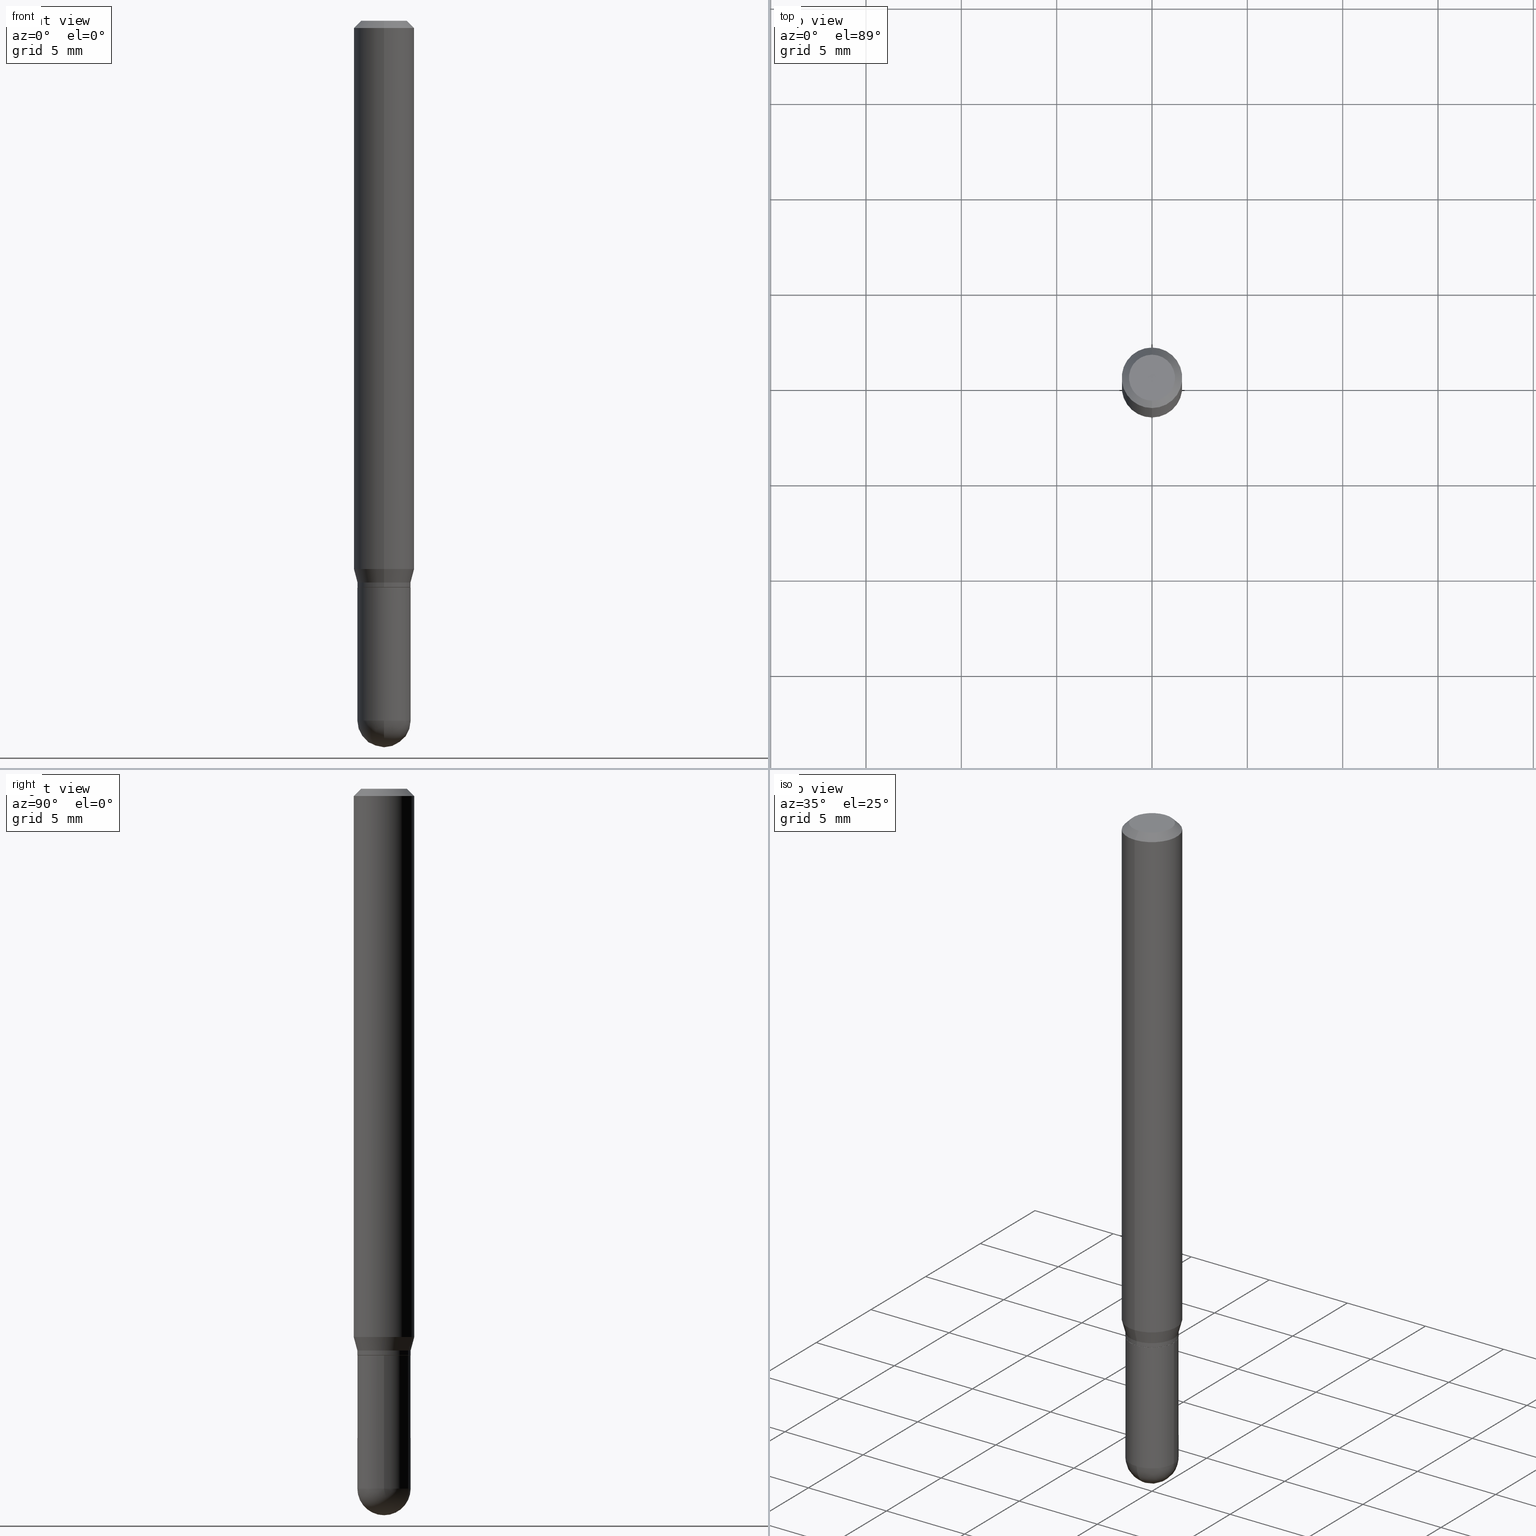
[diagram: canonical four-view strip — front | top / right | iso, engineering-drawing reading convention]
A machine part, canonical four-view strip (front | top / right | iso — engineering-drawing reading convention). The complete STEP part file that produces these views, byte-faithful:
ISO-10303-21;
HEADER;
FILE_DESCRIPTION (( 'STEP AP203' ),
    '1' );
FILE_NAME ('02603.STEP',
    '2024-03-07T20:42:38',
    ( '' ),
    ( '' ),
    'SwSTEP 2.0',
    'SolidWorks 2023',
    '' );
FILE_SCHEMA (( 'CONFIG_CONTROL_DESIGN' ));
ENDSEC;

DATA;
#1 = CARTESIAN_POINT ( 'NONE',  ( 2.836845830373735476E-29, -4.049972261486770294E-15, -1.160000000000000142 ) ) ;
#2 = DIRECTION ( 'NONE',  ( -6.982962677686266711E-15, -1.000000000000000000, 3.491355397833422354E-15 ) ) ;
#3 = ORIENTED_EDGE ( 'NONE', *, *, #148, .T. ) ;
#4 = VECTOR ( 'NONE', #181, 39.37007874015748143 ) ;
#5 = DIRECTION ( 'NONE',  ( -2.445556750322185455E-29, 3.491355397833421960E-15, 1.000000000000000000 ) ) ;
#6 = CYLINDRICAL_SURFACE ( 'NONE', #502, 0.05500000000000006273 ) ;
#7 = DIRECTION ( 'NONE',  ( -6.982962677686265922E-15, -1.000000000000000000, 4.966996352116824932E-15 ) ) ;
#8 = ADVANCED_FACE ( 'NONE', ( #408 ), #75, .T. ) ;
#9 = AXIS2_PLACEMENT_3D ( 'NONE', #88, #448, #483 ) ;
#10 = DIRECTION ( 'NONE',  ( -6.982962677686265922E-15, -1.000000000000000000, 2.483498176058418383E-15 ) ) ;
#11 = LOCAL_TIME ( 15, 42, 38.00000000000000000, #172 ) ;
#12 = DATE_TIME_ROLE ( 'creation_date' ) ;
#13 = CALENDAR_DATE ( 2024, 7, 3 ) ;
#14 = PERSON_AND_ORGANIZATION ( #35, #466 ) ;
#15 = CIRCLE ( 'NONE', #385, 0.05500000000000006967 ) ;
#16 = APPROVAL_PERSON_ORGANIZATION ( #121, #142, #213 ) ;
#17 = EDGE_LOOP ( 'NONE', ( #499, #155, #401, #472, #3 ) ) ;
#18 = ORIENTED_EDGE ( 'NONE', *, *, #57, .T. ) ;
#19 = DIRECTION ( 'NONE',  ( -2.445556750322185455E-29, 3.491355397833421565E-15, 1.000000000000000000 ) ) ;
#20 = ORIENTED_EDGE ( 'NONE', *, *, #507, .F. ) ;
#21 = CARTESIAN_POINT ( 'NONE',  ( 2.836845830373735476E-29, -4.049972261486770294E-15, -1.160000000000000142 ) ) ;
#22 = VECTOR ( 'NONE', #23, 39.37007874015748143 ) ;
#23 = DIRECTION ( 'NONE',  ( -2.445556750322185455E-29, 3.491355397833421565E-15, 1.000000000000000000 ) ) ;
#24 = ADVANCED_FACE ( 'NONE', ( #510 ), #177, .T. ) ;
#25 = DIRECTION ( 'NONE',  ( 1.000000000000000000, -6.982962677686262766E-15, 0.000000000000000000 ) ) ;
#26 = ADVANCED_FACE ( 'NONE', ( #112 ), #471, .F. ) ;
#27 = DIRECTION ( 'NONE',  ( -2.445468806185136597E-29, 3.491481338843145583E-15, 1.000000000000000000 ) ) ;
#28 = ORIENTED_EDGE ( 'NONE', *, *, #163, .F. ) ;
#29 = EDGE_CURVE ( 'NONE', #132, #384, #316, .T. ) ;
#30 = CARTESIAN_POINT ( 'NONE',  ( 3.668335125483358950E-31, -5.237033096750247867E-17, -0.01500000000000032904 ) ) ;
#31 =( NAMED_UNIT ( * ) PLANE_ANGLE_UNIT ( ) SI_UNIT ( $, .RADIAN. ) );
#32 = DIRECTION ( 'NONE',  ( 1.000000000000000000, -6.982962677686262766E-15, 0.000000000000000000 ) ) ;
#33 = CARTESIAN_POINT ( 'NONE',  ( -3.840629472727166842E-16, -0.05500000000000411504, -1.160000000000000142 ) ) ;
#34 = AXIS2_PLACEMENT_3D ( 'NONE', #30, #437, #358 ) ;
#35 = PERSON ( 'UNSPECIFIED', 'UNSPECIFIED', 'UNSPECIFIED', ('UNSPECIFIED'), ('UNSPECIFIED'), ('UNSPECIFIED') ) ;
#36 = VERTEX_POINT ( 'NONE', #33 ) ;
#37 = CIRCLE ( 'NONE', #337, 0.05500000000000006273 ) ;
#38 = DIRECTION ( 'NONE',  ( -2.445556750322185455E-29, 3.491355397833421565E-15, 1.000000000000000000 ) ) ;
#39 = DIRECTION ( 'NONE',  ( -4.937700262164631661E-15, -0.7071067811865571207, 0.7071067811865379138 ) ) ;
#40 = DIRECTION ( 'NONE',  ( 2.438088387897960049E-29, -3.491481338843145188E-15, -1.000000000000000000 ) ) ;
#41 = CARTESIAN_POINT ( 'NONE',  ( 3.872457909892832456E-16, 0.05449999999999592670, -1.170000000000000151 ) ) ;
#42 = EDGE_CURVE ( 'NONE', #124, #301, #361, .T. ) ;
#43 = AXIS2_PLACEMENT_3D ( 'NONE', #158, #40, #392 ) ;
#44 = CC_DESIGN_DATE_AND_TIME_ASSIGNMENT ( #183, #333, ( #484 ) ) ;
#45 = ORIENTED_EDGE ( 'NONE', *, *, #452, .T. ) ;
#46 = ORIENTED_EDGE ( 'NONE', *, *, #29, .T. ) ;
#47 = CARTESIAN_POINT ( 'NONE',  ( -4.364351673553912750E-16, -0.06250000000000005551, -0.01500000000000011047 ) ) ;
#48 = ADVANCED_FACE ( 'NONE', ( #79 ), #77, .T. ) ;
#49 = DATE_AND_TIME ( #404, #353 ) ;
#50 = CARTESIAN_POINT ( 'NONE',  ( 3.907985046680837497E-16, 0.05499999999999592715, -1.169500000000000206 ) ) ;
#51 = DIRECTION ( 'NONE',  ( 4.937700262164548042E-15, 0.7071067811865451302, -0.7071067811865499042 ) ) ;
#52 = VECTOR ( 'NONE', #202, 39.37007874015748143 ) ;
#53 = CC_DESIGN_APPROVAL ( #142, ( #481 ) ) ;
#54 = ORIENTED_EDGE ( 'NONE', *, *, #117, .F. ) ;
#55 = PERSON_AND_ORGANIZATION ( #35, #466 ) ;
#56 = ADVANCED_FACE ( 'NONE', ( #160 ), #375, .T. ) ;
#57 = EDGE_CURVE ( 'NONE', #60, #36, #15, .T. ) ;
#58 = PERSON_AND_ORGANIZATION ( #35, #466 ) ;
#59 = AXIS2_PLACEMENT_3D ( 'NONE', #154, #5, #439 ) ;
#60 = VERTEX_POINT ( 'NONE', #475 ) ;
#61 = APPLICATION_PROTOCOL_DEFINITION ( 'international standard', 'config_control_design', 1994, #365 ) ;
#62 = CARTESIAN_POINT ( 'NONE',  ( 0.000000000000000000, 0.000000000000000000, 0.000000000000000000 ) ) ;
#63 = EDGE_CURVE ( 'NONE', #36, #331, #314, .T. ) ;
#64 = DIRECTION ( 'NONE',  ( -2.445468806185136597E-29, 3.491481338843145583E-15, 1.000000000000000000 ) ) ;
#65 = EDGE_CURVE ( 'NONE', #132, #440, #66, .T. ) ;
#66 = CIRCLE ( 'NONE', #285, 0.05450000000000000677 ) ;
#67 = ORIENTED_EDGE ( 'NONE', *, *, #263, .F. ) ;
#68 = DIRECTION ( 'NONE',  ( -2.445556750322185455E-29, 3.491355397833421565E-15, 1.000000000000000000 ) ) ;
#69 =( CONVERSION_BASED_UNIT ( 'INCH', #428 ) LENGTH_UNIT ( ) NAMED_UNIT ( #495 ) );
#70 = EDGE_LOOP ( 'NONE', ( #470, #315, #279, #118 ) ) ;
#71 = EDGE_CURVE ( 'NONE', #440, #503, #237, .T. ) ;
#72 = DIRECTION ( 'NONE',  ( -2.445556750322185455E-29, 3.491355397833421960E-15, 1.000000000000000000 ) ) ;
#73 = DIRECTION ( 'NONE',  ( -2.445556750322185455E-29, 3.491355397833421960E-15, 1.000000000000000000 ) ) ;
#74 = LOCAL_TIME ( 15, 42, 38.00000000000000000, #175 ) ;
#75 = CYLINDRICAL_SURFACE ( 'NONE', #336, 0.05500000000000000028 ) ;
#76 = ORIENTED_EDGE ( 'NONE', *, *, #117, .T. ) ;
#77 = CYLINDRICAL_SURFACE ( 'NONE', #265, 0.06250000000000000000 ) ;
#78 = CARTESIAN_POINT ( 'NONE',  ( 2.861301397876957159E-29, -4.084885815465104466E-15, -1.170000000000000151 ) ) ;
#79 = FACE_OUTER_BOUND ( 'NONE', #280, .T. ) ;
#80 = DIRECTION ( 'NONE',  ( 1.000000000000000000, -6.982962677686265922E-15, 4.883557194083112901E-29 ) ) ;
#81 = VERTEX_POINT ( 'NONE', #281 ) ;
#82 = VERTEX_POINT ( 'NONE', #113 ) ;
#83 = CARTESIAN_POINT ( 'NONE',  ( 0.000000000000000000, 0.000000000000000000, 0.000000000000000000 ) ) ;
#84 = CIRCLE ( 'NONE', #204, 0.04749999999999999362 ) ;
#85 = CARTESIAN_POINT ( 'NONE',  ( -3.840629472727099789E-16, -0.05500000000000514894, -1.444999999999999840 ) ) ;
#86 = APPROVAL_STATUS ( 'not_yet_approved' ) ;
#87 = DIRECTION ( 'NONE',  ( 0.000000000000000000, 0.000000000000000000, 1.000000000000000000 ) ) ;
#88 = CARTESIAN_POINT ( 'NONE',  ( 3.668335125483358950E-31, -5.237033096750247867E-17, -0.01500000000000032904 ) ) ;
#89 = ORIENTED_EDGE ( 'NONE', *, *, #231, .T. ) ;
#90 = DIRECTION ( 'NONE',  ( 1.839019923739595582E-15, 0.2588190451025242922, 0.9659258262890673130 ) ) ;
#91 = CALENDAR_DATE ( 2024, 7, 3 ) ;
#92 = CC_DESIGN_PERSON_AND_ORGANIZATION_ASSIGNMENT ( #55, #371, ( #450 ) ) ;
#93 = CARTESIAN_POINT ( 'NONE',  ( -3.840629472727168322E-16, -0.05500000000000419137, -1.169499999999999984 ) ) ;
#94 = EDGE_LOOP ( 'NONE', ( #294, #169, #108, #264 ) ) ;
#95 = CARTESIAN_POINT ( 'NONE',  ( 3.533702424937522517E-29, -5.045190534628345684E-15, -1.445000000000000062 ) ) ;
#96 = APPROVAL_ROLE ( '' ) ;
#97 = LINE ( 'NONE', #415, #236 ) ;
#98 = ADVANCED_FACE ( 'NONE', ( #200 ), #240, .T. ) ;
#99 = CYLINDRICAL_SURFACE ( 'NONE', #360, 0.06250000000000000000 ) ;
#100 = DIRECTION ( 'NONE',  ( -6.982962677686265922E-15, -1.000000000000000000, 3.491355397833421565E-15 ) ) ;
#101 = AXIS2_PLACEMENT_3D ( 'NONE', #504, #455, #100 ) ;
#102 = AXIS2_PLACEMENT_3D ( 'NONE', #505, #80, #7 ) ;
#103 = APPLICATION_CONTEXT ( 'configuration controlled 3d designs of mechanical parts and assemblies' ) ;
#104 = CIRCLE ( 'NONE', #393, 0.05500000000000018763 ) ;
#105 = EDGE_CURVE ( 'NONE', #282, #233, #161, .T. ) ;
#106 = VECTOR ( 'NONE', #38, 39.37007874015748143 ) ;
#107 =( LENGTH_UNIT ( ) NAMED_UNIT ( * ) SI_UNIT ( $, .METRE. ) );
#108 = ORIENTED_EDGE ( 'NONE', *, *, #176, .T. ) ;
#109 = FACE_OUTER_BOUND ( 'NONE', #413, .T. ) ;
#110 = ORIENTED_EDGE ( 'NONE', *, *, #251, .T. ) ;
#111 = CARTESIAN_POINT ( 'NONE',  ( 3.668335125483358950E-31, -5.237033096750247867E-17, -0.01500000000000032904 ) ) ;
#112 = FACE_OUTER_BOUND ( 'NONE', #271, .T. ) ;
#113 = CARTESIAN_POINT ( 'NONE',  ( 3.840629472727447874E-16, 0.04749999999999999362, -4.939923113072090255E-16 ) ) ;
#114 = MANIFOLD_SOLID_BREP ( 'Body-Move/Copy2[1]', #344 ) ;
#115 = DIRECTION ( 'NONE',  ( -2.445556750322185455E-29, 3.491355397833421960E-15, 1.000000000000000000 ) ) ;
#116 = DIRECTION ( 'NONE',  ( -4.851104656540964275E-15, -0.7071067811865500152, -0.7071067811865450192 ) ) ;
#117 = EDGE_CURVE ( 'NONE', #233, #81, #426, .T. ) ;
#118 = ORIENTED_EDGE ( 'NONE', *, *, #176, .F. ) ;
#119 = DIRECTION ( 'NONE',  ( -2.445556750322185455E-29, 3.491355397833421960E-15, 1.000000000000000000 ) ) ;
#120 = PLANE ( 'NONE',  #457 ) ;
#121 = PERSON_AND_ORGANIZATION ( #35, #466 ) ;
#122 = EDGE_CURVE ( 'NONE', #509, #262, #411, .T. ) ;
#123 = CIRCLE ( 'NONE', #194, 0.06250000000000000000 ) ;
#124 = VERTEX_POINT ( 'NONE', #350 ) ;
#125 = AXIS2_PLACEMENT_3D ( 'NONE', #347, #150, #309 ) ;
#126 = CIRCLE ( 'NONE', #135, 0.05450000000000000677 ) ;
#127 = DIRECTION ( 'NONE',  ( -2.445556750322185455E-29, 3.491355397833421960E-15, 1.000000000000000000 ) ) ;
#128 = LINE ( 'NONE', #332, #106 ) ;
#129 = DIRECTION ( 'NONE',  ( -2.445556750322185455E-29, 3.491355397833421960E-15, 1.000000000000000000 ) ) ;
#130 = ADVANCED_FACE ( 'NONE', ( #109 ), #465, .T. ) ;
#131 = DIRECTION ( 'NONE',  ( -2.445556750322185455E-29, 3.491355397833421960E-15, 1.000000000000000000 ) ) ;
#132 = VERTEX_POINT ( 'NONE', #197 ) ;
#133 = ORIENTED_EDGE ( 'NONE', *, *, #425, .T. ) ;
#134 = CARTESIAN_POINT ( 'NONE',  ( 0.000000000000000000, 0.000000000000000000, 0.000000000000000000 ) ) ;
#135 = AXIS2_PLACEMENT_3D ( 'NONE', #78, #323, #208 ) ;
#136 = CC_DESIGN_PERSON_AND_ORGANIZATION_ASSIGNMENT ( #217, #409, ( #484 ) ) ;
#137 = MECHANICAL_CONTEXT ( 'NONE', #365, 'mechanical' ) ;
#138 = DATE_AND_TIME ( #91, #215 ) ;
#139 = EDGE_CURVE ( 'NONE', #331, #233, #167, .T. ) ;
#140 = FACE_OUTER_BOUND ( 'NONE', #17, .T. ) ;
#141 = DIRECTION ( 'NONE',  ( 6.982962677686265922E-15, 1.000000000000000000, -3.491355397833421565E-15 ) ) ;
#142 = APPROVAL ( #86, 'UNSPECIFIED' ) ;
#143 = ORIENTED_EDGE ( 'NONE', *, *, #453, .F. ) ;
#144 = VECTOR ( 'NONE', #165, 39.37007874015748143 ) ;
#145 = AXIS2_PLACEMENT_3D ( 'NONE', #21, #260, #496 ) ;
#146 = ORIENTED_EDGE ( 'NONE', *, *, #105, .T. ) ;
#147 = ORIENTED_EDGE ( 'NONE', *, *, #425, .F. ) ;
#148 = EDGE_CURVE ( 'NONE', #423, #262, #317, .T. ) ;
#149 = DIRECTION ( 'NONE',  ( -2.445468806185136597E-29, 3.491481338843145583E-15, 1.000000000000000000 ) ) ;
#150 = DIRECTION ( 'NONE',  ( -2.445468806185136597E-29, 3.491481338843145583E-15, 1.000000000000000000 ) ) ;
#151 = ORIENTED_EDGE ( 'NONE', *, *, #284, .F. ) ;
#152 = UNCERTAINTY_MEASURE_WITH_UNIT (LENGTH_MEASURE( 1.000000000000000082E-05 ), #69, 'distance_accuracy_value', 'NONE');
#153 = CIRCLE ( 'NONE', #168, 0.05500000000000000028 ) ;
#154 = CARTESIAN_POINT ( 'NONE',  ( 2.836845830373735476E-29, -4.049972261486770294E-15, -1.160000000000000142 ) ) ;
#155 = ORIENTED_EDGE ( 'NONE', *, *, #42, .T. ) ;
#156 = CARTESIAN_POINT ( 'NONE',  ( 3.907985046680910960E-16, 0.05499999999999503897, -1.445000000000000284 ) ) ;
#157 = APPLICATION_PROTOCOL_DEFINITION ( 'international standard', 'config_control_design', 1994, #103 ) ;
#158 = CARTESIAN_POINT ( 'NONE',  ( 3.840629472727732850E-16, 0.05499999999999591327, -1.170000000000000151 ) ) ;
#159 = DIRECTION ( 'NONE',  ( -2.445556750322185455E-29, 3.491355397833421960E-15, 1.000000000000000000 ) ) ;
#160 = FACE_OUTER_BOUND ( 'NONE', #229, .T. ) ;
#161 = LINE ( 'NONE', #482, #258 ) ;
#162 = AXIS2_PLACEMENT_3D ( 'NONE', #242, #399, #192 ) ;
#163 = EDGE_CURVE ( 'NONE', #303, #423, #449, .T. ) ;
#164 =( GEOMETRIC_REPRESENTATION_CONTEXT ( 3 ) GLOBAL_UNCERTAINTY_ASSIGNED_CONTEXT ( ( #152 ) ) GLOBAL_UNIT_ASSIGNED_CONTEXT ( ( #69, #31, #261 ) ) REPRESENTATION_CONTEXT ( 'NONE', 'WORKASPACE' ) );
#165 = DIRECTION ( 'NONE',  ( -2.445468806185136877E-29, 3.491481338843145188E-15, 1.000000000000000000 ) ) ;
#166 = DIRECTION ( 'NONE',  ( -2.445556750322185455E-29, 3.491355397833421960E-15, 1.000000000000000000 ) ) ;
#167 = LINE ( 'NONE', #414, #22 ) ;
#168 = AXIS2_PLACEMENT_3D ( 'NONE', #424, #64, #25 ) ;
#169 = ORIENTED_EDGE ( 'NONE', *, *, #467, .T. ) ;
#170 = APPROVAL_PERSON_ORGANIZATION ( #339, #463, #96 ) ;
#171 = ORIENTED_EDGE ( 'NONE', *, *, #122, .T. ) ;
#172 = COORDINATED_UNIVERSAL_TIME_OFFSET ( 5, 0, .BEHIND. ) ;
#173 = CARTESIAN_POINT ( 'NONE',  ( 2.860078619501796215E-29, -4.083140137766187599E-15, -1.169499999999999984 ) ) ;
#174 = DIRECTION ( 'NONE',  ( -6.982962677686265922E-15, -1.000000000000000000, 4.370956789862821150E-15 ) ) ;
#175 = COORDINATED_UNIVERSAL_TIME_OFFSET ( 5, 0, .BEHIND. ) ;
#176 = EDGE_CURVE ( 'NONE', #503, #36, #267, .T. ) ;
#177 = CONICAL_SURFACE ( 'NONE', #59, 0.05500000000000006967, 0.2617993877991495744 ) ;
#178 = PERSON_AND_ORGANIZATION_ROLE ( 'design_supplier' ) ;
#179 = VECTOR ( 'NONE', #19, 39.37007874015748143 ) ;
#180 = DIRECTION ( 'NONE',  ( -6.982962677686265922E-15, -1.000000000000000000, 0.000000000000000000 ) ) ;
#181 = DIRECTION ( 'NONE',  ( -2.445468806185136877E-29, 3.491481338843145188E-15, 1.000000000000000000 ) ) ;
#182 = ORIENTED_EDGE ( 'NONE', *, *, #266, .T. ) ;
#183 = DATE_AND_TIME ( #378, #259 ) ;
#184 = ORIENTED_EDGE ( 'NONE', *, *, #284, .T. ) ;
#185 = DIRECTION ( 'NONE',  ( 1.000000000000000000, -6.982962677686262766E-15, 0.000000000000000000 ) ) ;
#186 = ORIENTED_EDGE ( 'NONE', *, *, #387, .T. ) ;
#187 = APPROVAL_ROLE ( '' ) ;
#188 = CARTESIAN_POINT ( 'NONE',  ( 3.533702424937522517E-29, -5.045190534628345684E-15, -1.445000000000000062 ) ) ;
#189 = CARTESIAN_POINT ( 'NONE',  ( 2.861198503236610065E-29, -4.085033166446480067E-15, -1.170000000000000151 ) ) ;
#190 = DIRECTION ( 'NONE',  ( 1.000000000000000000, -6.982962677686262766E-15, 0.000000000000000000 ) ) ;
#191 = ADVANCED_BREP_SHAPE_REPRESENTATION ( '02603', ( #114, #468, #275 ), #164 ) ;
#192 = DIRECTION ( 'NONE',  ( 7.105427357601001070E-15, 1.000000000000000000, 0.000000000000000000 ) ) ;
#193 = ORIENTED_EDGE ( 'NONE', *, *, #139, .F. ) ;
#194 = AXIS2_PLACEMENT_3D ( 'NONE', #334, #492, #248 ) ;
#195 = AXIS2_PLACEMENT_3D ( 'NONE', #335, #500, #141 ) ;
#196 = CIRCLE ( 'NONE', #205, 0.05500000000000000028 ) ;
#197 = CARTESIAN_POINT ( 'NONE',  ( 3.890221478286836949E-16, 0.05449999999999592670, -1.170000000000000151 ) ) ;
#198 = CARTESIAN_POINT ( 'NONE',  ( 8.025166128797006696E-45, -1.145698503156555338E-30, -3.281529299101215100E-16 ) ) ;
#199 = CARTESIAN_POINT ( 'NONE',  ( 2.860078619501796215E-29, -4.083140137766187599E-15, -1.169499999999999984 ) ) ;
#200 = FACE_OUTER_BOUND ( 'NONE', #460, .T. ) ;
#201 = CARTESIAN_POINT ( 'NONE',  ( 0.05500000000000000028, -4.469096113719225052E-15, -1.170000000000000151 ) ) ;
#202 = DIRECTION ( 'NONE',  ( 5.024295867788147587E-15, 0.7071067811865620056, 0.7071067811865330288 ) ) ;
#203 = DIRECTION ( 'NONE',  ( 1.000000000000000000, -6.982962677686265922E-15, 4.883557194083112901E-29 ) ) ;
#204 = AXIS2_PLACEMENT_3D ( 'NONE', #198, #403, #2 ) ;
#205 = AXIS2_PLACEMENT_3D ( 'NONE', #422, #257, #185 ) ;
#206 = FACE_OUTER_BOUND ( 'NONE', #94, .T. ) ;
#207 = DIRECTION ( 'NONE',  ( -2.445556750322185455E-29, 3.491355397833421565E-15, 1.000000000000000000 ) ) ;
#208 = DIRECTION ( 'NONE',  ( -6.982962677686266711E-15, -1.000000000000000000, 2.506282562994736586E-15 ) ) ;
#209 = PRODUCT ( '02603', '02603', '', ( #137 ) ) ;
#210 = ORIENTED_EDGE ( 'NONE', *, *, #467, .F. ) ;
#211 = SECURITY_CLASSIFICATION_LEVEL ( 'unclassified' ) ;
#212 = FACE_OUTER_BOUND ( 'NONE', #498, .T. ) ;
#213 = APPROVAL_ROLE ( '' ) ;
#214 = PERSON_AND_ORGANIZATION ( #35, #466 ) ;
#215 = LOCAL_TIME ( 15, 42, 38.00000000000000000, #328 ) ;
#216 = ORIENTED_EDGE ( 'NONE', *, *, #218, .T. ) ;
#217 = PERSON_AND_ORGANIZATION ( #35, #466 ) ;
#218 = EDGE_CURVE ( 'NONE', #509, #303, #104, .T. ) ;
#219 = SPHERICAL_SURFACE ( 'NONE', #102, 0.05500000000000018763 ) ;
#220 = APPROVAL_STATUS ( 'not_yet_approved' ) ;
#221 = ORIENTED_EDGE ( 'NONE', *, *, #266, .F. ) ;
#222 = LINE ( 'NONE', #421, #179 ) ;
#223 = CC_DESIGN_SECURITY_CLASSIFICATION ( #484, ( #450 ) ) ;
#224 = DIRECTION ( 'NONE',  ( -2.445468806185136597E-29, 3.491481338843145583E-15, 1.000000000000000000 ) ) ;
#225 = ORIENTED_EDGE ( 'NONE', *, *, #387, .F. ) ;
#226 = AXIS2_PLACEMENT_3D ( 'NONE', #62, #224, #307 ) ;
#227 = CC_DESIGN_APPROVAL ( #433, ( #450 ) ) ;
#228 = ADVANCED_FACE ( 'NONE', ( #140 ), #338, .T. ) ;
#229 = EDGE_LOOP ( 'NONE', ( #244, #146, #76, #225 ) ) ;
#230 = EDGE_LOOP ( 'NONE', ( #184, #45, #54, #193 ) ) ;
#231 = EDGE_CURVE ( 'NONE', #282, #82, #84, .T. ) ;
#232 = CARTESIAN_POINT ( 'NONE',  ( 3.528999010347036160E-29, -5.051926092023656149E-15, -1.445000000000000062 ) ) ;
#233 = VERTEX_POINT ( 'NONE', #47 ) ;
#234 = DIRECTION ( 'NONE',  ( -6.982962677686266711E-15, -1.000000000000000000, 2.506282562994736586E-15 ) ) ;
#235 = ORIENTED_EDGE ( 'NONE', *, *, #325, .F. ) ;
#236 = VECTOR ( 'NONE', #90, 39.37007874015748854 ) ;
#237 = LINE ( 'NONE', #322, #252 ) ;
#238 = ORIENTED_EDGE ( 'NONE', *, *, #42, .F. ) ;
#239 = CARTESIAN_POINT ( 'NONE',  ( 0.000000000000000000, 0.000000000000000000, 0.000000000000000000 ) ) ;
#240 = SPHERICAL_SURFACE ( 'NONE', #456, 0.05500000000000018763 ) ;
#241 = ADVANCED_FACE ( 'NONE', ( #206 ), #346, .T. ) ;
#242 = CARTESIAN_POINT ( 'NONE',  ( 3.528999010347036160E-29, -5.051926092023656149E-15, -1.445000000000000062 ) ) ;
#243 = EDGE_CURVE ( 'NONE', #301, #445, #153, .T. ) ;
#244 = ORIENTED_EDGE ( 'NONE', *, *, #231, .F. ) ;
#245 = DIRECTION ( 'NONE',  ( 6.982962677686265922E-15, 1.000000000000000000, -3.483106191921935554E-15 ) ) ;
#246 = CONICAL_SURFACE ( 'NONE', #145, 0.05500000000000006967, 0.2617993877991495744 ) ;
#247 = CARTESIAN_POINT ( 'NONE',  ( 2.861301397876957159E-29, -4.084885815465104466E-15, -1.170000000000000151 ) ) ;
#248 = DIRECTION ( 'NONE',  ( -6.982962677686265922E-15, -1.000000000000000000, 4.370956789862821150E-15 ) ) ;
#249 = SHAPE_DEFINITION_REPRESENTATION ( #355, #191 ) ;
#250 = FACE_OUTER_BOUND ( 'NONE', #70, .T. ) ;
#251 = EDGE_CURVE ( 'NONE', #445, #301, #493, .T. ) ;
#252 = VECTOR ( 'NONE', #39, 39.37007874015748143 ) ;
#253 = PERSON_AND_ORGANIZATION ( #35, #466 ) ;
#254 = AXIS2_PLACEMENT_3D ( 'NONE', #199, #354, #357 ) ;
#255 = APPROVAL_DATE_TIME ( #138, #142 ) ;
#256 = EDGE_CURVE ( 'NONE', #423, #445, #462, .T. ) ;
#257 = DIRECTION ( 'NONE',  ( -2.445468806185136597E-29, 3.491481338843145583E-15, 1.000000000000000000 ) ) ;
#258 = VECTOR ( 'NONE', #116, 39.37007874015748143 ) ;
#259 = LOCAL_TIME ( 15, 42, 38.00000000000000000, #297 ) ;
#260 = DIRECTION ( 'NONE',  ( -2.445556750322185455E-29, 3.491355397833421960E-15, 1.000000000000000000 ) ) ;
#261 =( NAMED_UNIT ( * ) SI_UNIT ( $, .STERADIAN. ) SOLID_ANGLE_UNIT ( ) );
#262 = VERTEX_POINT ( 'NONE', #156 ) ;
#263 = EDGE_CURVE ( 'NONE', #81, #233, #420, .T. ) ;
#264 = ORIENTED_EDGE ( 'NONE', *, *, #57, .F. ) ;
#265 = AXIS2_PLACEMENT_3D ( 'NONE', #320, #73, #469 ) ;
#266 = EDGE_CURVE ( 'NONE', #351, #331, #359, .T. ) ;
#267 = LINE ( 'NONE', #382, #501 ) ;
#268 = ORIENTED_EDGE ( 'NONE', *, *, #256, .T. ) ;
#269 = ORIENTED_EDGE ( 'NONE', *, *, #263, .T. ) ;
#270 = DIRECTION ( 'NONE',  ( -6.982962677686265922E-15, -1.000000000000000000, 4.966996352116824932E-15 ) ) ;
#271 = EDGE_LOOP ( 'NONE', ( #110, #305 ) ) ;
#272 = ADVANCED_FACE ( 'NONE', ( #447 ), #419, .T. ) ;
#273 = DIRECTION ( 'NONE',  ( -2.445468806185136597E-29, 3.491481338843145583E-15, 1.000000000000000000 ) ) ;
#274 = COORDINATED_UNIVERSAL_TIME_OFFSET ( 5, 0, .BEHIND. ) ;
#275 = AXIS2_PLACEMENT_3D ( 'NONE', #277, #87, #319 ) ;
#276 = DIRECTION ( 'NONE',  ( -1.807323732225325406E-15, -0.2588190451025175198, 0.9659258262890690894 ) ) ;
#277 = CARTESIAN_POINT ( 'NONE',  ( 0.000000000000000000, 0.000000000000000000, 0.000000000000000000 ) ) ;
#278 = CARTESIAN_POINT ( 'NONE',  ( 3.668335125483358950E-31, -5.237033096750247867E-17, -0.01500000000000032904 ) ) ;
#279 = ORIENTED_EDGE ( 'NONE', *, *, #376, .F. ) ;
#280 = EDGE_LOOP ( 'NONE', ( #300, #182, #324, #67 ) ) ;
#281 = CARTESIAN_POINT ( 'NONE',  ( 4.440892098500904235E-16, 0.06249999999999995143, -0.01500000000000054588 ) ) ;
#282 = VERTEX_POINT ( 'NONE', #489 ) ;
#283 = FACE_OUTER_BOUND ( 'NONE', #488, .T. ) ;
#284 = EDGE_CURVE ( 'NONE', #331, #351, #123, .T. ) ;
#285 = AXIS2_PLACEMENT_3D ( 'NONE', #395, #441, #512 ) ;
#286 = ORIENTED_EDGE ( 'NONE', *, *, #340, .F. ) ;
#287 = CARTESIAN_POINT ( 'NONE',  ( -3.805714659338729375E-16, -0.05450000000000408684, -1.169999999999999929 ) ) ;
#288 = DIRECTION ( 'NONE',  ( -6.982962677686266711E-15, -1.000000000000000000, 2.506282562994736586E-15 ) ) ;
#289 = FACE_OUTER_BOUND ( 'NONE', #432, .T. ) ;
#290 = ORIENTED_EDGE ( 'NONE', *, *, #71, .F. ) ;
#291 = DIRECTION ( 'NONE',  ( -2.445556750322185455E-29, 3.491355397833421960E-15, 1.000000000000000000 ) ) ;
#292 = CARTESIAN_POINT ( 'NONE',  ( -4.364351673553640100E-16, -0.06250000000000395517, -1.132009618943233598 ) ) ;
#293 = AXIS2_PLACEMENT_3D ( 'NONE', #111, #159, #313 ) ;
#294 = ORIENTED_EDGE ( 'NONE', *, *, #430, .F. ) ;
#295 = VECTOR ( 'NONE', #51, 39.37007874015748143 ) ;
#296 = ADVANCED_FACE ( 'NONE', ( #250 ), #6, .T. ) ;
#297 = COORDINATED_UNIVERSAL_TIME_OFFSET ( 5, 0, .BEHIND. ) ;
#298 = DIRECTION ( 'NONE',  ( -2.445556750322185455E-29, 3.491355397833421960E-15, 1.000000000000000000 ) ) ;
#299 = CALENDAR_DATE ( 2024, 7, 3 ) ;
#300 = ORIENTED_EDGE ( 'NONE', *, *, #452, .F. ) ;
#301 = VERTEX_POINT ( 'NONE', #451 ) ;
#302 = ORIENTED_EDGE ( 'NONE', *, *, #218, .F. ) ;
#303 = VERTEX_POINT ( 'NONE', #85 ) ;
#304 = EDGE_LOOP ( 'NONE', ( #286, #18, #321, #221 ) ) ;
#305 = ORIENTED_EDGE ( 'NONE', *, *, #243, .T. ) ;
#306 = ORIENTED_EDGE ( 'NONE', *, *, #507, .T. ) ;
#307 = DIRECTION ( 'NONE',  ( 1.000000000000000000, -6.982962677686266711E-15, 4.876176775795935793E-29 ) ) ;
#308 = DIRECTION ( 'NONE',  ( 1.000000000000000000, -6.982962677686262766E-15, 0.000000000000000000 ) ) ;
#309 = DIRECTION ( 'NONE',  ( 1.000000000000000000, -6.982962677686262766E-15, 0.000000000000000000 ) ) ;
#310 = AXIS2_PLACEMENT_3D ( 'NONE', #188, #27, #190 ) ;
#311 = CIRCLE ( 'NONE', #377, 0.04749999999999999362 ) ;
#312 = DIRECTION ( 'NONE',  ( 2.445556750322185455E-29, -3.491355397833421960E-15, -1.000000000000000000 ) ) ;
#313 = DIRECTION ( 'NONE',  ( -6.982962677686265922E-15, -1.000000000000000000, 3.483106191921935554E-15 ) ) ;
#314 = LINE ( 'NONE', #434, #352 ) ;
#315 = ORIENTED_EDGE ( 'NONE', *, *, #430, .T. ) ;
#316 = LINE ( 'NONE', #41, #52 ) ;
#317 = CIRCLE ( 'NONE', #310, 0.05500000000000000028 ) ;
#318 = CIRCLE ( 'NONE', #254, 0.05500000000000006273 ) ;
#319 = DIRECTION ( 'NONE',  ( 1.000000000000000000, 0.000000000000000000, 0.000000000000000000 ) ) ;
#320 = CARTESIAN_POINT ( 'NONE',  ( 0.000000000000000000, 0.000000000000000000, 0.000000000000000000 ) ) ;
#321 = ORIENTED_EDGE ( 'NONE', *, *, #63, .T. ) ;
#322 = CARTESIAN_POINT ( 'NONE',  ( -3.805714659338729375E-16, -0.05450000000000408684, -1.169999999999999929 ) ) ;
#323 = DIRECTION ( 'NONE',  ( -2.445556750322185455E-29, 3.491355397833421960E-15, 1.000000000000000000 ) ) ;
#324 = ORIENTED_EDGE ( 'NONE', *, *, #139, .T. ) ;
#325 = EDGE_CURVE ( 'NONE', #503, #384, #37, .T. ) ;
#326 = DIRECTION ( 'NONE',  ( -6.982962677686265922E-15, -1.000000000000000000, 3.491355397833421565E-15 ) ) ;
#327 = DESIGN_CONTEXT ( 'detailed design', #103, 'design' ) ;
#328 = COORDINATED_UNIVERSAL_TIME_OFFSET ( 5, 0, .BEHIND. ) ;
#329 = AXIS2_PLACEMENT_3D ( 'NONE', #405, #127, #406 ) ;
#330 = DIRECTION ( 'NONE',  ( -6.982962677686265922E-15, -1.000000000000000000, 3.491355397833421565E-15 ) ) ;
#331 = VERTEX_POINT ( 'NONE', #292 ) ;
#332 = CARTESIAN_POINT ( 'NONE',  ( 4.440892098500625669E-16, 0.06250000000000000000, -2.182097123645888725E-16 ) ) ;
#333 = DATE_TIME_ROLE ( 'classification_date' ) ;
#334 = CARTESIAN_POINT ( 'NONE',  ( 2.768393765036270570E-29, -3.952247893496815155E-15, -1.132009618943233820 ) ) ;
#335 = CARTESIAN_POINT ( 'NONE',  ( 3.316907271900976096E-16, 0.04749999999999999362, -3.299158463521483691E-16 ) ) ;
#336 = AXIS2_PLACEMENT_3D ( 'NONE', #83, #273, #508 ) ;
#337 = AXIS2_PLACEMENT_3D ( 'NONE', #173, #131, #10 ) ;
#338 = CYLINDRICAL_SURFACE ( 'NONE', #226, 0.05500000000000000028 ) ;
#339 = PERSON_AND_ORGANIZATION ( #35, #466 ) ;
#340 = EDGE_CURVE ( 'NONE', #60, #351, #97, .T. ) ;
#341 = PLANE ( 'NONE',  #195 ) ;
#342 = EDGE_LOOP ( 'NONE', ( #238, #133, #380, #268, #386 ) ) ;
#343 = ORIENTED_EDGE ( 'NONE', *, *, #29, .F. ) ;
#344 = CLOSED_SHELL ( 'NONE', ( #228, #491, #26, #98, #8 ) ) ;
#345 = EDGE_CURVE ( 'NONE', #82, #282, #311, .T. ) ;
#346 = CYLINDRICAL_SURFACE ( 'NONE', #101, 0.05500000000000006273 ) ;
#347 = CARTESIAN_POINT ( 'NONE',  ( 3.533702424937522517E-29, -5.045190534628345684E-15, -1.445000000000000062 ) ) ;
#348 = ORIENTED_EDGE ( 'NONE', *, *, #345, .T. ) ;
#349 = APPROVAL_STATUS ( 'not_yet_approved' ) ;
#350 = CARTESIAN_POINT ( 'NONE',  ( -0.05500000000000000028, -4.174313345869358610E-15, -1.445000000000000062 ) ) ;
#351 = VERTEX_POINT ( 'NONE', #366 ) ;
#352 = VECTOR ( 'NONE', #276, 39.37007874015748854 ) ;
#353 = LOCAL_TIME ( 15, 42, 38.00000000000000000, #274 ) ;
#354 = DIRECTION ( 'NONE',  ( -2.445556750322185455E-29, 3.491355397833421960E-15, 1.000000000000000000 ) ) ;
#355 = PRODUCT_DEFINITION_SHAPE ( 'NONE', 'NONE',  #481 ) ;
#356 = CARTESIAN_POINT ( 'NONE',  ( -0.05500000000000000028, 3.907985046680551042E-16, -2.705414299640198362E-30 ) ) ;
#357 = DIRECTION ( 'NONE',  ( -6.982962677686265922E-15, -1.000000000000000000, 2.483498176058418383E-15 ) ) ;
#358 = DIRECTION ( 'NONE',  ( -6.982962677686265922E-15, -1.000000000000000000, 3.483106191921935554E-15 ) ) ;
#359 = CIRCLE ( 'NONE', #443, 0.06250000000000000000 ) ;
#360 = AXIS2_PLACEMENT_3D ( 'NONE', #239, #291, #394 ) ;
#361 = LINE ( 'NONE', #356, #144 ) ;
#362 = CARTESIAN_POINT ( 'NONE',  ( 8.025166128797006696E-45, -1.145698503156555338E-30, -3.281529299101215100E-16 ) ) ;
#363 = LINE ( 'NONE', #446, #295 ) ;
#364 = CARTESIAN_POINT ( 'NONE',  ( 3.661148087391975640E-29, -5.247325344357685057E-15, -1.500000000000000222 ) ) ;
#365 = APPLICATION_CONTEXT ( 'configuration controlled 3d designs of mechanical parts and assemblies' ) ;
#366 = CARTESIAN_POINT ( 'NONE',  ( 4.440892098500901277E-16, 0.06249999999999603789, -1.132009618943234264 ) ) ;
#367 = CLOSED_SHELL ( 'NONE', ( #296, #130, #56, #438, #416, #24, #48, #272, #480, #372, #398, #241 ) ) ;
#368 = PERSON_AND_ORGANIZATION_ROLE ( 'design_owner' ) ;
#369 = AXIS2_PLACEMENT_3D ( 'NONE', #486, #129, #288 ) ;
#370 = CC_DESIGN_PERSON_AND_ORGANIZATION_ASSIGNMENT ( #214, #368, ( #209 ) ) ;
#371 = PERSON_AND_ORGANIZATION_ROLE ( 'creator' ) ;
#372 = ADVANCED_FACE ( 'NONE', ( #283 ), #120, .F. ) ;
#373 = CARTESIAN_POINT ( 'NONE',  ( 0.05500000000000000028, -4.949174797810157466E-15, -1.445000000000000062 ) ) ;
#374 = PERSON_AND_ORGANIZATION_ROLE ( 'creator' ) ;
#375 = CONICAL_SURFACE ( 'NONE', #476, 0.06250000000000000000, 0.7853981633974483900 ) ;
#376 = EDGE_CURVE ( 'NONE', #36, #60, #494, .T. ) ;
#377 = AXIS2_PLACEMENT_3D ( 'NONE', #362, #166, #410 ) ;
#378 = CALENDAR_DATE ( 2024, 7, 3 ) ;
#379 = FACE_OUTER_BOUND ( 'NONE', #383, .T. ) ;
#380 = ORIENTED_EDGE ( 'NONE', *, *, #163, .T. ) ;
#381 = CC_DESIGN_PERSON_AND_ORGANIZATION_ASSIGNMENT ( #14, #178, ( #450 ) ) ;
#382 = CARTESIAN_POINT ( 'NONE',  ( -3.840629472727450832E-16, -0.05500000000000006273, 1.920245468808384158E-16 ) ) ;
#383 = EDGE_LOOP ( 'NONE', ( #485, #458, #151, #464 ) ) ;
#384 = VERTEX_POINT ( 'NONE', #50 ) ;
#385 = AXIS2_PLACEMENT_3D ( 'NONE', #1, #119, #478 ) ;
#386 = ORIENTED_EDGE ( 'NONE', *, *, #243, .F. ) ;
#387 = EDGE_CURVE ( 'NONE', #82, #81, #363, .T. ) ;
#388 = ORIENTED_EDGE ( 'NONE', *, *, #345, .F. ) ;
#389 = DIRECTION ( 'NONE',  ( -1.000000000000000000, 6.982962677686265922E-15, -4.883557194083112340E-29 ) ) ;
#390 = ORIENTED_EDGE ( 'NONE', *, *, #148, .F. ) ;
#391 = DIRECTION ( 'NONE',  ( -2.445468806185136597E-29, 3.491481338843145583E-15, 1.000000000000000000 ) ) ;
#392 = DIRECTION ( 'NONE',  ( -1.000000000000000000, 6.982962677686265922E-15, -4.876176775795935793E-29 ) ) ;
#393 = AXIS2_PLACEMENT_3D ( 'NONE', #232, #389, #180 ) ;
#394 = DIRECTION ( 'NONE',  ( -6.982962677686265922E-15, -1.000000000000000000, 3.491355397833421960E-15 ) ) ;
#395 = CARTESIAN_POINT ( 'NONE',  ( 2.861301397876957159E-29, -4.084885815465104466E-15, -1.170000000000000151 ) ) ;
#396 = CARTESIAN_POINT ( 'NONE',  ( 3.528999010347036160E-29, -5.051926092023656149E-15, -1.445000000000000062 ) ) ;
#397 = PRODUCT_RELATED_PRODUCT_CATEGORY ( 'detail', '', ( #209 ) ) ;
#398 = ADVANCED_FACE ( 'NONE', ( #212 ), #402, .T. ) ;
#399 = DIRECTION ( 'NONE',  ( 1.000000000000000000, -7.105427357601001070E-15, 4.926315508542082329E-29 ) ) ;
#400 = AXIS2_PLACEMENT_3D ( 'NONE', #189, #149, #308 ) ;
#401 = ORIENTED_EDGE ( 'NONE', *, *, #251, .F. ) ;
#402 = CONICAL_SURFACE ( 'NONE', #369, 0.05450000000000000677, 0.7853981633974653764 ) ;
#403 = DIRECTION ( 'NONE',  ( -2.445556750322185455E-29, 3.491355397833421960E-15, 1.000000000000000000 ) ) ;
#404 = CALENDAR_DATE ( 2024, 7, 3 ) ;
#405 = CARTESIAN_POINT ( 'NONE',  ( 2.836845830373735476E-29, -4.049972261486770294E-15, -1.160000000000000142 ) ) ;
#406 = DIRECTION ( 'NONE',  ( -6.982962677686265133E-15, -1.000000000000000000, 2.483498176058417988E-15 ) ) ;
#407 = DATE_AND_TIME ( #299, #74 ) ;
#408 = FACE_OUTER_BOUND ( 'NONE', #342, .T. ) ;
#409 = PERSON_AND_ORGANIZATION_ROLE ( 'classification_officer' ) ;
#410 = DIRECTION ( 'NONE',  ( -6.982962677686266711E-15, -1.000000000000000000, 3.491355397833422354E-15 ) ) ;
#411 = CIRCLE ( 'NONE', #162, 0.05500000000000018763 ) ;
#412 = AXIS2_PLACEMENT_3D ( 'NONE', #95, #391, #32 ) ;
#413 = EDGE_LOOP ( 'NONE', ( #306, #46, #235, #290 ) ) ;
#414 = CARTESIAN_POINT ( 'NONE',  ( -4.364351673553916201E-16, -0.06250000000000000000, 2.182097123645888725E-16 ) ) ;
#415 = CARTESIAN_POINT ( 'NONE',  ( 3.907985046680839469E-16, 0.05499999999999602429, -1.160000000000000364 ) ) ;
#416 = ADVANCED_FACE ( 'NONE', ( #379 ), #246, .T. ) ;
#417 = ORIENTED_EDGE ( 'NONE', *, *, #65, .T. ) ;
#418 = DATE_AND_TIME ( #13, #11 ) ;
#419 = CONICAL_SURFACE ( 'NONE', #9, 0.06250000000000000000, 0.7853981633974483900 ) ;
#420 = CIRCLE ( 'NONE', #293, 0.06250000000000000000 ) ;
#421 = CARTESIAN_POINT ( 'NONE',  ( 3.907985046680554986E-16, 0.05500000000000006273, -1.920245468808384158E-16 ) ) ;
#422 = CARTESIAN_POINT ( 'NONE',  ( 3.533702424937522517E-29, -5.045190534628345684E-15, -1.445000000000000062 ) ) ;
#423 = VERTEX_POINT ( 'NONE', #373 ) ;
#424 = CARTESIAN_POINT ( 'NONE',  ( 2.861198503236610065E-29, -4.085033166446480067E-15, -1.170000000000000151 ) ) ;
#425 = EDGE_CURVE ( 'NONE', #124, #303, #196, .T. ) ;
#426 = CIRCLE ( 'NONE', #34, 0.06250000000000000000 ) ;
#427 = APPROVAL_PERSON_ORGANIZATION ( #253, #433, #187 ) ;
#428 = LENGTH_MEASURE_WITH_UNIT ( LENGTH_MEASURE( 0.02539999999999999897 ), #107 );
#429 = ORIENTED_EDGE ( 'NONE', *, *, #65, .F. ) ;
#430 = EDGE_CURVE ( 'NONE', #384, #60, #222, .T. ) ;
#431 = CARTESIAN_POINT ( 'NONE',  ( 2.861301397876957159E-29, -4.084885815465104466E-15, -1.170000000000000151 ) ) ;
#432 = EDGE_LOOP ( 'NONE', ( #302, #171, #390, #28 ) ) ;
#433 = APPROVAL ( #349, 'UNSPECIFIED' ) ;
#434 = CARTESIAN_POINT ( 'NONE',  ( -3.840629472727166842E-16, -0.05500000000000411504, -1.160000000000000142 ) ) ;
#435 = AXIS2_PLACEMENT_3D ( 'NONE', #431, #72, #234 ) ;
#436 = CIRCLE ( 'NONE', #412, 0.05500000000000000028 ) ;
#437 = DIRECTION ( 'NONE',  ( -2.445556750322185455E-29, 3.491355397833421960E-15, 1.000000000000000000 ) ) ;
#438 = ADVANCED_FACE ( 'NONE', ( #459 ), #99, .T. ) ;
#439 = DIRECTION ( 'NONE',  ( -6.982962677686265133E-15, -1.000000000000000000, 2.483498176058417988E-15 ) ) ;
#440 = VERTEX_POINT ( 'NONE', #287 ) ;
#441 = DIRECTION ( 'NONE',  ( -2.445556750322185455E-29, 3.491355397833421960E-15, 1.000000000000000000 ) ) ;
#442 = CC_DESIGN_PERSON_AND_ORGANIZATION_ASSIGNMENT ( #58, #374, ( #481 ) ) ;
#443 = AXIS2_PLACEMENT_3D ( 'NONE', #474, #115, #174 ) ;
#444 = CC_DESIGN_APPROVAL ( #463, ( #484 ) ) ;
#445 = VERTEX_POINT ( 'NONE', #201 ) ;
#446 = CARTESIAN_POINT ( 'NONE',  ( 4.364351673553919652E-16, 0.06249999999999995143, -0.01500000000000054588 ) ) ;
#447 = FACE_OUTER_BOUND ( 'NONE', #490, .T. ) ;
#448 = DIRECTION ( 'NONE',  ( 2.445556750322185455E-29, -3.491355397833421960E-15, -1.000000000000000000 ) ) ;
#449 = CIRCLE ( 'NONE', #125, 0.05500000000000000028 ) ;
#450 = PRODUCT_DEFINITION_FORMATION_WITH_SPECIFIED_SOURCE ( 'ANY', '', #209, .NOT_KNOWN. ) ;
#451 = CARTESIAN_POINT ( 'NONE',  ( -0.05500000000000000028, -4.174313345869358610E-15, -1.170000000000000151 ) ) ;
#452 = EDGE_CURVE ( 'NONE', #351, #81, #128, .T. ) ;
#453 = EDGE_CURVE ( 'NONE', #262, #124, #436, .T. ) ;
#454 = CARTESIAN_POINT ( 'NONE',  ( 0.05500000000000000028, -3.840629472727446888E-16, 2.681897226687764826E-30 ) ) ;
#455 = DIRECTION ( 'NONE',  ( -2.445556750322185455E-29, 3.491355397833421960E-15, 1.000000000000000000 ) ) ;
#456 = AXIS2_PLACEMENT_3D ( 'NONE', #396, #203, #270 ) ;
#457 = AXIS2_PLACEMENT_3D ( 'NONE', #247, #207, #330 ) ;
#458 = ORIENTED_EDGE ( 'NONE', *, *, #340, .T. ) ;
#459 = FACE_OUTER_BOUND ( 'NONE', #230, .T. ) ;
#460 = EDGE_LOOP ( 'NONE', ( #479, #216, #147, #143 ) ) ;
#461 = EDGE_LOOP ( 'NONE', ( #348, #89 ) ) ;
#462 = LINE ( 'NONE', #454, #4 ) ;
#463 = APPROVAL ( #220, 'UNSPECIFIED' ) ;
#464 = ORIENTED_EDGE ( 'NONE', *, *, #63, .F. ) ;
#465 = CONICAL_SURFACE ( 'NONE', #435, 0.05450000000000000677, 0.7853981633974653764 ) ;
#466 = ORGANIZATION ( 'UNSPECIFIED', 'UNSPECIFIED', '' ) ;
#467 = EDGE_CURVE ( 'NONE', #384, #503, #318, .T. ) ;
#468 = MANIFOLD_SOLID_BREP ( 'Body-Move/Copy2[2]', #367 ) ;
#469 = DIRECTION ( 'NONE',  ( -6.982962677686265922E-15, -1.000000000000000000, 3.491355397833421960E-15 ) ) ;
#470 = ORIENTED_EDGE ( 'NONE', *, *, #325, .T. ) ;
#471 = PLANE ( 'NONE',  #43 ) ;
#472 = ORIENTED_EDGE ( 'NONE', *, *, #256, .F. ) ;
#473 = CC_DESIGN_DATE_AND_TIME_ASSIGNMENT ( #407, #12, ( #481 ) ) ;
#474 = CARTESIAN_POINT ( 'NONE',  ( 2.768393765036270570E-29, -3.952247893496815155E-15, -1.132009618943233820 ) ) ;
#475 = CARTESIAN_POINT ( 'NONE',  ( 4.174438572590871852E-16, 0.05499999999999602429, -1.160000000000000364 ) ) ;
#476 = AXIS2_PLACEMENT_3D ( 'NONE', #278, #312, #245 ) ;
#477 = APPROVAL_DATE_TIME ( #49, #433 ) ;
#478 = DIRECTION ( 'NONE',  ( -6.982962677686265133E-15, -1.000000000000000000, 2.483498176058417988E-15 ) ) ;
#479 = ORIENTED_EDGE ( 'NONE', *, *, #122, .F. ) ;
#480 = ADVANCED_FACE ( 'NONE', ( #511 ), #341, .F. ) ;
#481 = PRODUCT_DEFINITION ( 'UNKNOWN', '', #450, #327 ) ;
#482 = CARTESIAN_POINT ( 'NONE',  ( -4.287811248607203282E-16, -0.06250000000000005551, -0.01500000000000011047 ) ) ;
#483 = DIRECTION ( 'NONE',  ( 6.982962677686265922E-15, 1.000000000000000000, -3.483106191921935554E-15 ) ) ;
#484 = SECURITY_CLASSIFICATION ( '', '', #211 ) ;
#485 = ORIENTED_EDGE ( 'NONE', *, *, #376, .T. ) ;
#486 = CARTESIAN_POINT ( 'NONE',  ( 2.861301397876957159E-29, -4.084885815465104466E-15, -1.170000000000000151 ) ) ;
#487 = ORIENTED_EDGE ( 'NONE', *, *, #71, .T. ) ;
#488 = EDGE_LOOP ( 'NONE', ( #20, #429 ) ) ;
#489 = CARTESIAN_POINT ( 'NONE',  ( -3.773273898774340269E-16, -0.04749999999999999362, -1.623135485130339945E-16 ) ) ;
#490 = EDGE_LOOP ( 'NONE', ( #506, #388, #186, #269 ) ) ;
#491 = ADVANCED_FACE ( 'NONE', ( #289 ), #219, .T. ) ;
#492 = DIRECTION ( 'NONE',  ( -2.445556750322185455E-29, 3.491355397833421960E-15, 1.000000000000000000 ) ) ;
#493 = CIRCLE ( 'NONE', #400, 0.05500000000000000028 ) ;
#494 = CIRCLE ( 'NONE', #329, 0.05500000000000006967 ) ;
#495 = DIMENSIONAL_EXPONENTS ( 1.000000000000000000, 0.000000000000000000, 0.000000000000000000, 0.000000000000000000, 0.000000000000000000, 0.000000000000000000, 0.000000000000000000 ) ;
#496 = DIRECTION ( 'NONE',  ( -6.982962677686265133E-15, -1.000000000000000000, 2.483498176058417988E-15 ) ) ;
#497 = APPROVAL_DATE_TIME ( #418, #463 ) ;
#498 = EDGE_LOOP ( 'NONE', ( #343, #417, #487, #210 ) ) ;
#499 = ORIENTED_EDGE ( 'NONE', *, *, #453, .T. ) ;
#500 = DIRECTION ( 'NONE',  ( 2.445556750322185455E-29, -3.491355397833421565E-15, -1.000000000000000000 ) ) ;
#501 = VECTOR ( 'NONE', #68, 39.37007874015748143 ) ;
#502 = AXIS2_PLACEMENT_3D ( 'NONE', #134, #298, #326 ) ;
#503 = VERTEX_POINT ( 'NONE', #93 ) ;
#504 = CARTESIAN_POINT ( 'NONE',  ( 0.000000000000000000, 0.000000000000000000, 0.000000000000000000 ) ) ;
#505 = CARTESIAN_POINT ( 'NONE',  ( 3.528999010347036160E-29, -5.051926092023656149E-15, -1.445000000000000062 ) ) ;
#506 = ORIENTED_EDGE ( 'NONE', *, *, #105, .F. ) ;
#507 = EDGE_CURVE ( 'NONE', #440, #132, #126, .T. ) ;
#508 = DIRECTION ( 'NONE',  ( 1.000000000000000000, -6.982962677686266711E-15, 4.876176775795935793E-29 ) ) ;
#509 = VERTEX_POINT ( 'NONE', #364 ) ;
#510 = FACE_OUTER_BOUND ( 'NONE', #304, .T. ) ;
#511 = FACE_OUTER_BOUND ( 'NONE', #461, .T. ) ;
#512 = DIRECTION ( 'NONE',  ( -6.982962677686266711E-15, -1.000000000000000000, 2.506282562994736586E-15 ) ) ;
ENDSEC;
END-ISO-10303-21;
